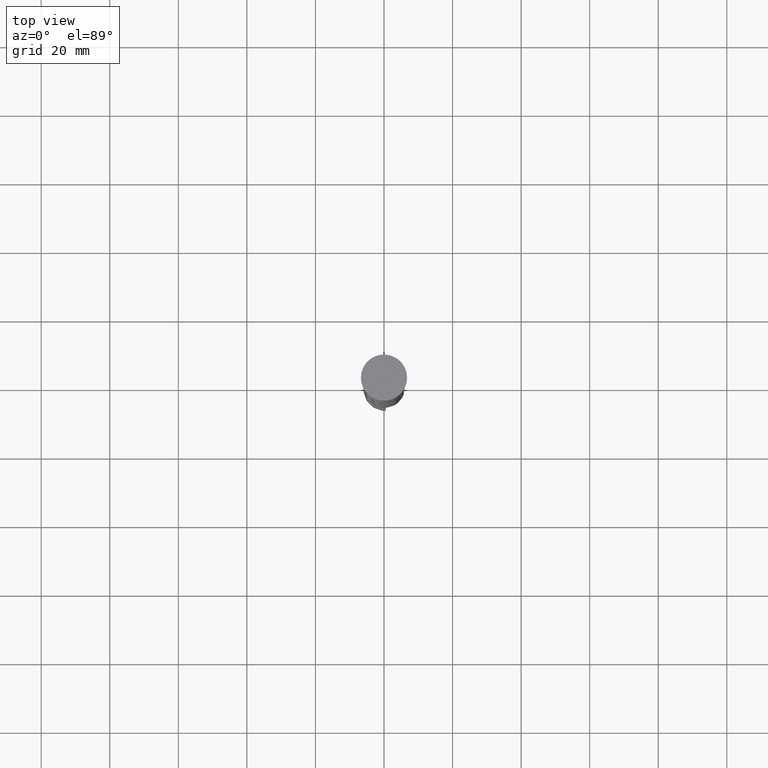
[diagram: clean part render]
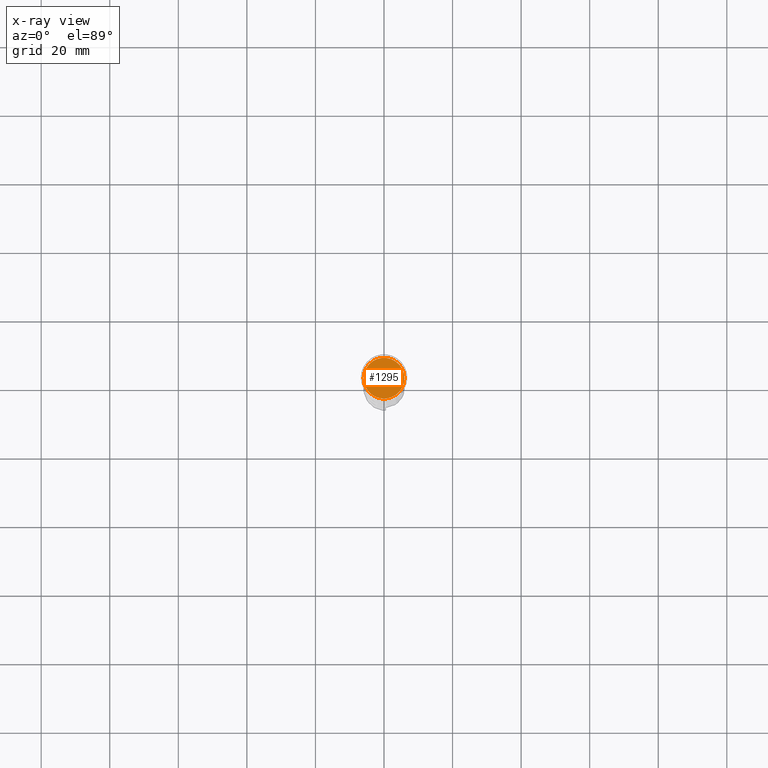
[diagram: x-ray — body ghosted, one internal face saturated and labeled with its STEP entity id]
A machine part, top view, then the same camera in x-ray: the body is ghosted and one INTERNAL B-rep face — a face not visible from any outside direction — is saturated and labeled: STEP entity #1295.
In plain terms, the highlighted planar face has unit normal (0, 0, -1).
Its self-contained STEP definition (entity closure, byte-faithful):
#17 = ORIENTED_EDGE ( 'NONE', *, *, #3400, .T. ) ;
#136 = CARTESIAN_POINT ( 'NONE',  ( 5.950000000000002842, 7.470345474798858237E-16, -10.50000000000000178 ) ) ;
#247 = CARTESIAN_POINT ( 'NONE',  ( 0.000000000000000000, 0.000000000000000000, -10.50000000000000178 ) ) ;
#349 = CIRCLE ( 'NONE', #2992, 5.950000000000002842 ) ;
#371 = PLANE ( 'NONE',  #3717 ) ;
#410 = CIRCLE ( 'NONE', #3418, 5.950000000000002842 ) ;
#715 = DIRECTION ( 'NONE',  ( -1.000000000000000000, 0.000000000000000000, 0.000000000000000000 ) ) ;
#987 = EDGE_LOOP ( 'NONE', ( #17, #1207 ) ) ;
#1045 = VERTEX_POINT ( 'NONE', #1736 ) ;
#1207 = ORIENTED_EDGE ( 'NONE', *, *, #3494, .T. ) ;
#1295 = ADVANCED_FACE ( 'NONE', ( #3328 ), #371, .F. ) ;
#1529 = CARTESIAN_POINT ( 'NONE',  ( 0.000000000000000000, 0.000000000000000000, -10.50000000000000178 ) ) ;
#1736 = CARTESIAN_POINT ( 'NONE',  ( -5.950000000000002842, 0.000000000000000000, -10.50000000000000178 ) ) ;
#2354 = DIRECTION ( 'NONE',  ( -1.000000000000000000, 0.000000000000000000, -0.000000000000000000 ) ) ;
#2419 = VERTEX_POINT ( 'NONE', #136 ) ;
#2705 = DIRECTION ( 'NONE',  ( 0.000000000000000000, 0.000000000000000000, -1.000000000000000000 ) ) ;
#2773 = DIRECTION ( 'NONE',  ( -0.000000000000000000, -0.000000000000000000, 1.000000000000000000 ) ) ;
#2859 = DIRECTION ( 'NONE',  ( -0.000000000000000000, -0.000000000000000000, 1.000000000000000000 ) ) ;
#2992 = AXIS2_PLACEMENT_3D ( 'NONE', #3018, #2773, #715 ) ;
#3018 = CARTESIAN_POINT ( 'NONE',  ( 0.000000000000000000, 0.000000000000000000, -10.50000000000000178 ) ) ;
#3145 = DIRECTION ( 'NONE',  ( -1.000000000000000000, 0.000000000000000000, 0.000000000000000000 ) ) ;
#3328 = FACE_OUTER_BOUND ( 'NONE', #987, .T. ) ;
#3400 = EDGE_CURVE ( 'NONE', #1045, #2419, #410, .T. ) ;
#3418 = AXIS2_PLACEMENT_3D ( 'NONE', #247, #2859, #3145 ) ;
#3494 = EDGE_CURVE ( 'NONE', #2419, #1045, #349, .T. ) ;
#3717 = AXIS2_PLACEMENT_3D ( 'NONE', #1529, #2705, #2354 ) ;